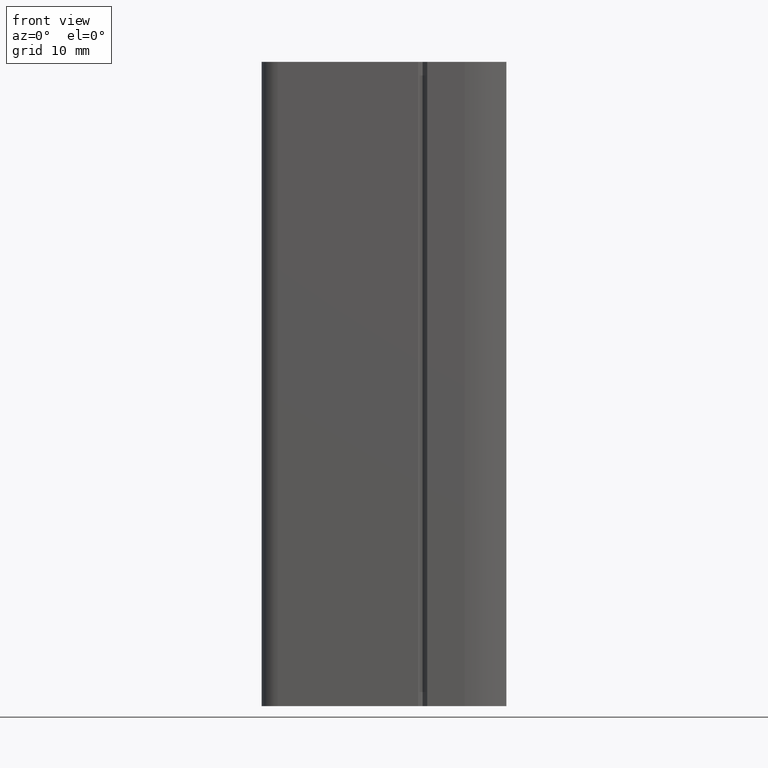
[diagram: clean part render]
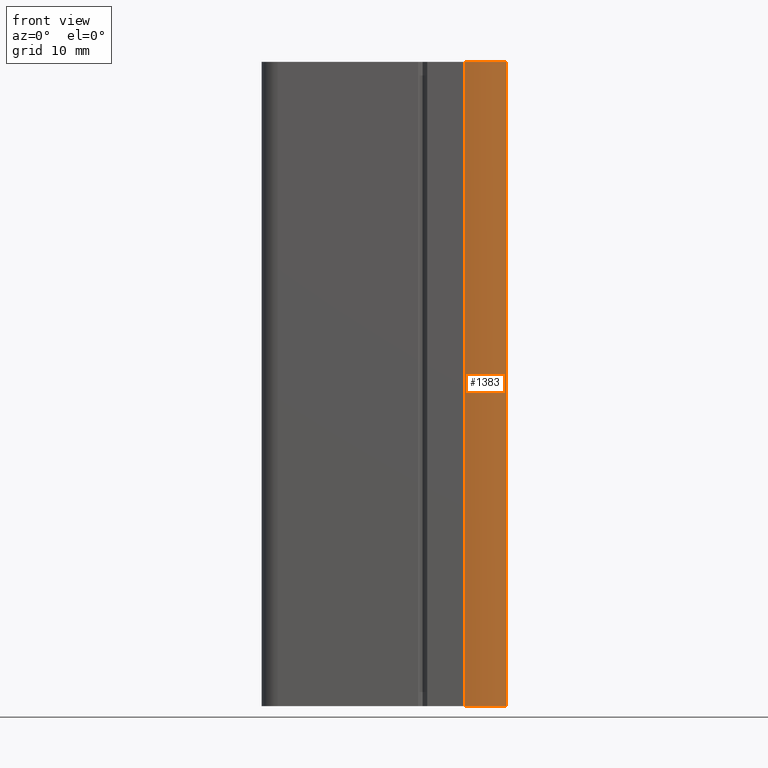
[diagram: same view with one face highlighted and labeled with its STEP entity id]
A machine part, front view. The second image highlights one B-rep face of the part: STEP entity #1383.
In plain terms, the highlighted cylindrical surface (partial cylindrical patch) has radius 9 mm, axis along (0, 0, 1).
Its self-contained STEP definition (entity closure, byte-faithful):
#1325=CARTESIAN_POINT('',(-31.896446610137446,-3.763034E-010,0.0));
#1326=VERTEX_POINT('',#1325);
#1333=CARTESIAN_POINT('',(-31.896446610137446,-3.763034E-010,100.0));
#1334=VERTEX_POINT('',#1333);
#1335=CARTESIAN_POINT('',(-31.896446610137446,-3.763034E-010,0.0));
#1336=DIRECTION('',(0.0,0.0,1.0));
#1337=VECTOR('',#1336,100.0);
#1338=LINE('',#1335,#1337);
#1339=EDGE_CURVE('',#1326,#1334,#1338,.T.);
#1351=CARTESIAN_POINT('',(-31.896446610137900,8.999999998723752,0.0));
#1352=DIRECTION('',(0.0,0.0,1.0));
#1353=DIRECTION('',(5.052748E-014,-1.0,0.0));
#1354=AXIS2_PLACEMENT_3D('',#1351,#1352,#1353);
#1355=CYLINDRICAL_SURFACE('',#1354,8.999999999100055);
#1356=CARTESIAN_POINT('',(-25.424536498419911,2.745851016676625,0.0));
#1357=VERTEX_POINT('',#1356);
#1358=CARTESIAN_POINT('',(-31.896446610137900,8.999999998723752,0.0));
#1359=DIRECTION('',(0.0,0.0,1.0));
#1360=DIRECTION('',(5.052748E-014,-1.0,0.0));
#1361=AXIS2_PLACEMENT_3D('',#1358,#1359,#1360);
#1362=CIRCLE('',#1361,8.999999999100055);
#1363=EDGE_CURVE('',#1326,#1357,#1362,.T.);
#1364=ORIENTED_EDGE('',*,*,#1363,.T.);
#1365=CARTESIAN_POINT('',(-25.424536498419911,2.745851016676625,100.0));
#1366=VERTEX_POINT('',#1365);
#1367=CARTESIAN_POINT('',(-25.424536498419911,2.745851016676625,0.0));
#1368=DIRECTION('',(0.0,0.0,1.0));
#1369=VECTOR('',#1368,100.0);
#1370=LINE('',#1367,#1369);
#1371=EDGE_CURVE('',#1357,#1366,#1370,.T.);
#1372=ORIENTED_EDGE('',*,*,#1371,.T.);
#1373=CARTESIAN_POINT('',(-31.896446610137900,8.999999998723752,100.0));
#1374=DIRECTION('',(0.0,0.0,1.0));
#1375=DIRECTION('',(5.052748E-014,-1.0,0.0));
#1376=AXIS2_PLACEMENT_3D('',#1373,#1374,#1375);
#1377=CIRCLE('',#1376,8.999999999100055);
#1378=EDGE_CURVE('',#1334,#1366,#1377,.T.);
#1379=ORIENTED_EDGE('',*,*,#1378,.F.);
#1380=ORIENTED_EDGE('',*,*,#1339,.F.);
#1381=EDGE_LOOP('',(#1364,#1372,#1379,#1380));
#1382=FACE_OUTER_BOUND('',#1381,.T.);
#1383=ADVANCED_FACE('',(#1382),#1355,.T.);